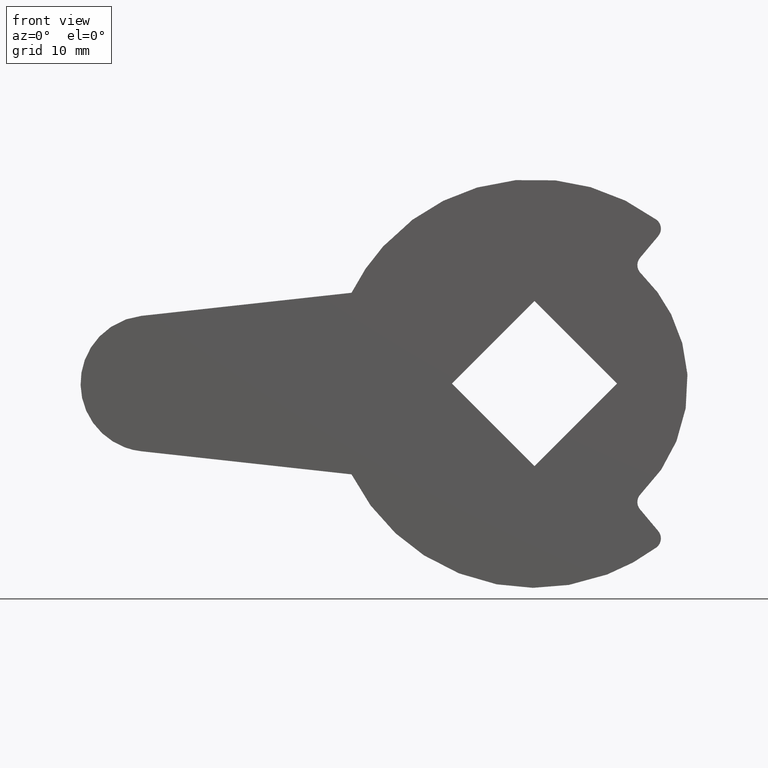
[diagram: clean part render]
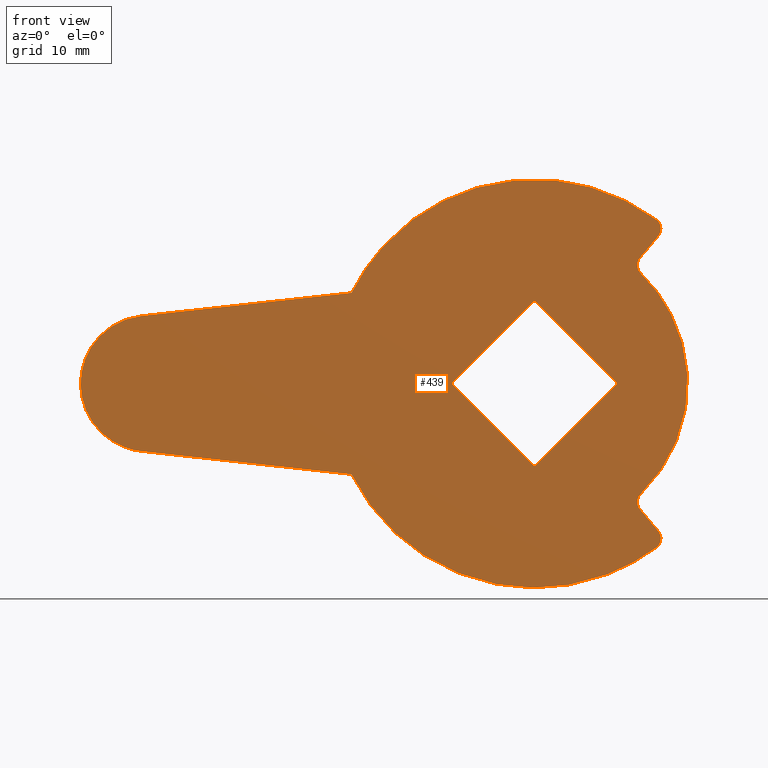
[diagram: same view with one face highlighted and labeled with its STEP entity id]
A machine part, front view. The second image highlights one B-rep face of the part: STEP entity #439.
In plain terms, the highlighted face is a freeform B-spline surface patch.
Its self-contained STEP definition (entity closure, byte-faithful):
#242=CARTESIAN_POINT('',(-42.672072522692837,-1.999999999999915,19.798160958607792));
#243=CARTESIAN_POINT('',(16.172307132952142,-1.999999999999915,19.798160958607792));
#244=CARTESIAN_POINT('',(-42.672072522692837,-1.999999999999915,-19.798180533607209));
#245=CARTESIAN_POINT('',(16.172307132952142,-1.999999999999915,-19.798180533607209));
#246=B_SPLINE_SURFACE_WITH_KNOTS('',1,1,((#242,#244),(#243,#245)),.UNSPECIFIED.,.F.,.F.,.U.,(2,2),(2,2),(0.0,58.844379655644993),(0.0,39.596341492214997),.UNSPECIFIED.);
#247=CARTESIAN_POINT('',(-16.124516390019249,-1.999999999999890,-7.999998199249859));
#248=VERTEX_POINT('',#247);
#249=CARTESIAN_POINT('',(-34.676984152787249,-1.999999999999890,-5.961662655938681));
#250=VERTEX_POINT('',#249);
#251=CARTESIAN_POINT('',(-16.124516390019249,-1.999999999999890,-7.999998199249859));
#252=CARTESIAN_POINT('',(-34.676984152787249,-1.999999999999890,-5.961662655938681));
#253=QUASI_UNIFORM_CURVE('',1,(#251,#252),.UNSPECIFIED.,.F.,.U.);
#254=EDGE_CURVE('',#248,#250,#253,.T.);
#255=ORIENTED_EDGE('',*,*,#254,.F.);
#256=CARTESIAN_POINT('',(10.739112776660720,-1.999999999999890,-14.445497084531420));
#257=VERTEX_POINT('',#256);
#258=CARTESIAN_POINT('',(-16.124516390019259,-1.999999999999890,-7.999998199249873));
#259=CARTESIAN_POINT('',(-12.383854566696820,-1.999999999999890,-15.539582422374794));
#260=CARTESIAN_POINT('',(-4.199610718877528,-1.999999999999890,-17.503261055320699));
#261=CARTESIAN_POINT('',(3.984633128941766,-1.999999999999890,-19.466939688266606));
#262=CARTESIAN_POINT('',(10.739112776660731,-1.999999999999890,-14.445497084531450));
#270=(BOUNDED_CURVE()B_SPLINE_CURVE(2,(#258,#259,#260,#261,#262),.UNSPECIFIED.,.F.,.U.)B_SPLINE_CURVE_WITH_KNOTS((3,2,3),(0.0,0.500000000000000,1.0),.UNSPECIFIED.)CURVE()GEOMETRIC_REPRESENTATION_ITEM()RATIONAL_B_SPLINE_CURVE((1.0,0.905864136016763,1.0,0.905864136016763,1.0))REPRESENTATION_ITEM(''));
#271=EDGE_CURVE('',#248,#257,#270,.T.);
#272=ORIENTED_EDGE('',*,*,#271,.T.);
#273=CARTESIAN_POINT('',(10.903888410526561,-1.999999999999890,-12.994704011800300));
#274=VERTEX_POINT('',#273);
#275=CARTESIAN_POINT('',(10.739112776660731,-1.999999999999890,-14.445497084531430));
#276=CARTESIAN_POINT('',(11.087159702485563,-1.999999999999890,-14.186750629943164));
#277=CARTESIAN_POINT('',(11.136101848852570,-1.999999999999890,-13.755831778363071));
#278=CARTESIAN_POINT('',(11.185043995219578,-1.999999999999890,-13.324912926782989));
#279=CARTESIAN_POINT('',(10.903888410526561,-1.999999999999890,-12.994704011800300));
#287=(BOUNDED_CURVE()B_SPLINE_CURVE(2,(#275,#276,#277,#278,#279),.UNSPECIFIED.,.F.,.U.)B_SPLINE_CURVE_WITH_KNOTS((3,2,3),(0.0,0.500000000000000,1.0),.UNSPECIFIED.)CURVE()GEOMETRIC_REPRESENTATION_ITEM()RATIONAL_B_SPLINE_CURVE((1.0,0.917434344494731,1.0,0.917434344494731,1.0))REPRESENTATION_ITEM(''));
#288=EDGE_CURVE('',#257,#274,#287,.T.);
#289=ORIENTED_EDGE('',*,*,#288,.T.);
#290=CARTESIAN_POINT('',(9.302911589466469,-1.999999999999890,-11.086695988191639));
#291=VERTEX_POINT('',#290);
#292=CARTESIAN_POINT('',(9.302911589466469,-1.999999999999890,-11.086695988191639));
#293=CARTESIAN_POINT('',(10.903888410526561,-1.999999999999890,-12.994704011800300));
#294=QUASI_UNIFORM_CURVE('',1,(#292,#293),.UNSPECIFIED.,.F.,.U.);
#295=EDGE_CURVE('',#291,#274,#294,.T.);
#296=ORIENTED_EDGE('',*,*,#295,.F.);
#297=CARTESIAN_POINT('',(9.370232998812860,-1.999999999999890,-9.718481708830780));
#298=VERTEX_POINT('',#297);
#299=CARTESIAN_POINT('',(9.370232998812860,-1.999999999999890,-9.718481708830780));
#300=CARTESIAN_POINT('',(8.693520258576225,-1.999999999999891,-10.370948212998021));
#301=CARTESIAN_POINT('',(9.302911589466465,-1.999999999999890,-11.086695988191639));
#309=(BOUNDED_CURVE()B_SPLINE_CURVE(2,(#299,#300,#301),.UNSPECIFIED.,.F.,.U.)CURVE()GEOMETRIC_REPRESENTATION_ITEM()QUASI_UNIFORM_CURVE()RATIONAL_B_SPLINE_CURVE((1.0,0.728632280253743,1.0))REPRESENTATION_ITEM(''));
#310=EDGE_CURVE('',#298,#291,#309,.T.);
#311=ORIENTED_EDGE('',*,*,#310,.F.);
#312=CARTESIAN_POINT('',(9.370201414441402,-1.999999999999890,9.718512161382490));
#313=VERTEX_POINT('',#312);
#314=CARTESIAN_POINT('',(9.370232998812858,-1.999999999999890,-9.718481708830781));
#315=CARTESIAN_POINT('',(13.500002456544811,-1.999999999999890,-5.736679563118574));
#316=CARTESIAN_POINT('',(13.499993134626131,-1.999999999999890,0.000021937005616));
#317=CARTESIAN_POINT('',(13.499983812707452,-1.999999999999890,5.736723437129803));
#318=CARTESIAN_POINT('',(9.370201414441402,-1.999999999999890,9.718512161382490));
#326=(BOUNDED_CURVE()B_SPLINE_CURVE(2,(#314,#315,#316,#317,#318),.UNSPECIFIED.,.F.,.U.)B_SPLINE_CURVE_WITH_KNOTS((3,2,3),(0.0,0.500000000000000,1.0),.UNSPECIFIED.)CURVE()GEOMETRIC_REPRESENTATION_ITEM()RATIONAL_B_SPLINE_CURVE((1.0,0.920350869292396,1.0,0.920350869292396,1.0))REPRESENTATION_ITEM(''));
#327=EDGE_CURVE('',#298,#313,#326,.T.);
#328=ORIENTED_EDGE('',*,*,#327,.T.);
#329=CARTESIAN_POINT('',(9.302911589467289,-1.999999999999890,11.086695988192600));
#330=VERTEX_POINT('',#329);
#331=CARTESIAN_POINT('',(9.302911589467280,-1.999999999999890,11.086695988192609));
#332=CARTESIAN_POINT('',(8.693486324251857,-1.999999999999891,10.370976687549268));
#333=CARTESIAN_POINT('',(9.370201414441397,-1.999999999999890,9.718512161382483));
#341=(BOUNDED_CURVE()B_SPLINE_CURVE(2,(#331,#332,#333),.UNSPECIFIED.,.F.,.U.)CURVE()GEOMETRIC_REPRESENTATION_ITEM()QUASI_UNIFORM_CURVE()RATIONAL_B_SPLINE_CURVE((1.0,0.728615029615800,1.0))REPRESENTATION_ITEM(''));
#342=EDGE_CURVE('',#330,#313,#341,.T.);
#343=ORIENTED_EDGE('',*,*,#342,.F.);
#344=CARTESIAN_POINT('',(10.903888410520860,-1.999999999999890,12.994704011793500));
#345=VERTEX_POINT('',#344);
#346=CARTESIAN_POINT('',(10.903888410520860,-1.999999999999890,12.994704011793500));
#347=CARTESIAN_POINT('',(9.302911589467289,-1.999999999999890,11.086695988192600));
#348=QUASI_UNIFORM_CURVE('',1,(#346,#347),.UNSPECIFIED.,.F.,.U.);
#349=EDGE_CURVE('',#345,#330,#348,.T.);
#350=ORIENTED_EDGE('',*,*,#349,.F.);
#351=CARTESIAN_POINT('',(10.739072857427660,-1.999999999999890,14.445526761286960));
#352=VERTEX_POINT('',#351);
#353=CARTESIAN_POINT('',(10.903888410520850,-1.999999999999890,12.994704011793511));
#354=CARTESIAN_POINT('',(11.185033449866765,-1.999999999999889,13.324930315184833));
#355=CARTESIAN_POINT('',(11.136079863434230,-1.999999999999890,13.755854311935661));
#356=CARTESIAN_POINT('',(11.087126277001692,-1.999999999999889,14.186778308686488));
#357=CARTESIAN_POINT('',(10.739072857427660,-1.999999999999890,14.445526761286960));
#365=(BOUNDED_CURVE()B_SPLINE_CURVE(2,(#353,#354,#355,#356,#357),.UNSPECIFIED.,.F.,.U.)B_SPLINE_CURVE_WITH_KNOTS((3,2,3),(0.0,0.500000000000000,1.0),.UNSPECIFIED.)CURVE()GEOMETRIC_REPRESENTATION_ITEM()RATIONAL_B_SPLINE_CURVE((1.0,0.917438250666661,1.0,0.917438250666661,1.0))REPRESENTATION_ITEM(''));
#366=EDGE_CURVE('',#345,#352,#365,.T.);
#367=ORIENTED_EDGE('',*,*,#366,.T.);
#368=CARTESIAN_POINT('',(-16.124516390019298,-1.999999999999890,7.999998199249760));
#369=VERTEX_POINT('',#368);
#370=CARTESIAN_POINT('',(10.739072857427670,-1.999999999999890,14.445526761286979));
#371=CARTESIAN_POINT('',(3.984586888391954,-1.999999999999890,19.466919151968000));
#372=CARTESIAN_POINT('',(-4.199630048120304,-1.999999999999890,17.503235016676509));
#373=CARTESIAN_POINT('',(-12.383846984632562,-1.999999999999890,15.539550881385031));
#374=CARTESIAN_POINT('',(-16.124516390019298,-1.999999999999890,7.999998199249757));
#382=(BOUNDED_CURVE()B_SPLINE_CURVE(2,(#370,#371,#372,#373,#374),.UNSPECIFIED.,.F.,.U.)B_SPLINE_CURVE_WITH_KNOTS((3,2,3),(0.0,0.500000000000000,1.0),.UNSPECIFIED.)CURVE()GEOMETRIC_REPRESENTATION_ITEM()RATIONAL_B_SPLINE_CURVE((1.0,0.905864952288434,1.0,0.905864952288434,1.0))REPRESENTATION_ITEM(''));
#383=EDGE_CURVE('',#352,#369,#382,.T.);
#384=ORIENTED_EDGE('',*,*,#383,.T.);
#385=CARTESIAN_POINT('',(-34.633145301686049,-1.999999999999890,5.966479173585730));
#386=VERTEX_POINT('',#385);
#387=CARTESIAN_POINT('',(-34.633145301686049,-1.999999999999890,5.966479173585730));
#388=CARTESIAN_POINT('',(-16.124516390019298,-1.999999999999890,7.999998199249760));
#389=QUASI_UNIFORM_CURVE('',1,(#387,#388),.UNSPECIFIED.,.F.,.U.);
#390=EDGE_CURVE('',#386,#369,#389,.T.);
#391=ORIENTED_EDGE('',*,*,#390,.F.);
#392=CARTESIAN_POINT('',(-34.633145301686049,-1.999999999999890,5.966479173585726));
#393=CARTESIAN_POINT('',(-39.979998210725512,-1.999999999999891,5.398907567245670));
#394=CARTESIAN_POINT('',(-39.999759478119252,-1.999999999999890,0.022051324836150));
#395=CARTESIAN_POINT('',(-40.019520745512963,-1.999999999999891,-5.354804917573370));
#396=CARTESIAN_POINT('',(-34.676984152787249,-1.999999999999890,-5.961662655938678));
#404=(BOUNDED_CURVE()B_SPLINE_CURVE(2,(#392,#393,#394,#395,#396),.UNSPECIFIED.,.F.,.U.)B_SPLINE_CURVE_WITH_KNOTS((3,2,3),(0.0,0.500000000000000,1.0),.UNSPECIFIED.)CURVE()GEOMETRIC_REPRESENTATION_ITEM()RATIONAL_B_SPLINE_CURVE((1.0,0.744718579548289,1.0,0.744718579548289,1.0))REPRESENTATION_ITEM(''));
#405=EDGE_CURVE('',#386,#250,#404,.T.);
#406=ORIENTED_EDGE('',*,*,#405,.T.);
#407=EDGE_LOOP('',(#255,#272,#289,#296,#311,#328,#343,#350,#367,#384,#391,#406));
#408=FACE_OUTER_BOUND('',#407,.T.);
#409=CARTESIAN_POINT('',(0.000100000000003,-1.999999999999890,-7.283200000000000));
#410=VERTEX_POINT('',#409);
#411=CARTESIAN_POINT('',(-7.283100000000000,-1.999999999999890,0.0));
#412=VERTEX_POINT('',#411);
#413=CARTESIAN_POINT('',(0.000100000000003,-1.999999999999890,-7.283200000000000));
#414=CARTESIAN_POINT('',(-7.283100000000000,-1.999999999999890,0.0));
#415=QUASI_UNIFORM_CURVE('',1,(#413,#414),.UNSPECIFIED.,.F.,.U.);
#416=EDGE_CURVE('',#410,#412,#415,.T.);
#417=ORIENTED_EDGE('',*,*,#416,.T.);
#418=CARTESIAN_POINT('',(0.000100000000003,-1.999999999999890,7.283200000000000));
#419=VERTEX_POINT('',#418);
#420=CARTESIAN_POINT('',(-7.283100000000000,-1.999999999999890,0.0));
#421=CARTESIAN_POINT('',(0.000100000000003,-1.999999999999890,7.283200000000000));
#422=QUASI_UNIFORM_CURVE('',1,(#420,#421),.UNSPECIFIED.,.F.,.U.);
#423=EDGE_CURVE('',#412,#419,#422,.T.);
#424=ORIENTED_EDGE('',*,*,#423,.T.);
#425=CARTESIAN_POINT('',(7.283299999999900,-1.999999999999890,0.0));
#426=VERTEX_POINT('',#425);
#427=CARTESIAN_POINT('',(0.000100000000003,-1.999999999999890,7.283200000000000));
#428=CARTESIAN_POINT('',(7.283299999999900,-1.999999999999890,0.0));
#429=QUASI_UNIFORM_CURVE('',1,(#427,#428),.UNSPECIFIED.,.F.,.U.);
#430=EDGE_CURVE('',#419,#426,#429,.T.);
#431=ORIENTED_EDGE('',*,*,#430,.T.);
#432=CARTESIAN_POINT('',(7.283299999999900,-1.999999999999890,0.0));
#433=CARTESIAN_POINT('',(0.000100000000003,-1.999999999999890,-7.283200000000000));
#434=QUASI_UNIFORM_CURVE('',1,(#432,#433),.UNSPECIFIED.,.F.,.U.);
#435=EDGE_CURVE('',#426,#410,#434,.T.);
#436=ORIENTED_EDGE('',*,*,#435,.T.);
#437=EDGE_LOOP('',(#417,#424,#431,#436));
#438=FACE_BOUND('',#437,.T.);
#439=ADVANCED_FACE('',(#408,#438),#246,.F.);